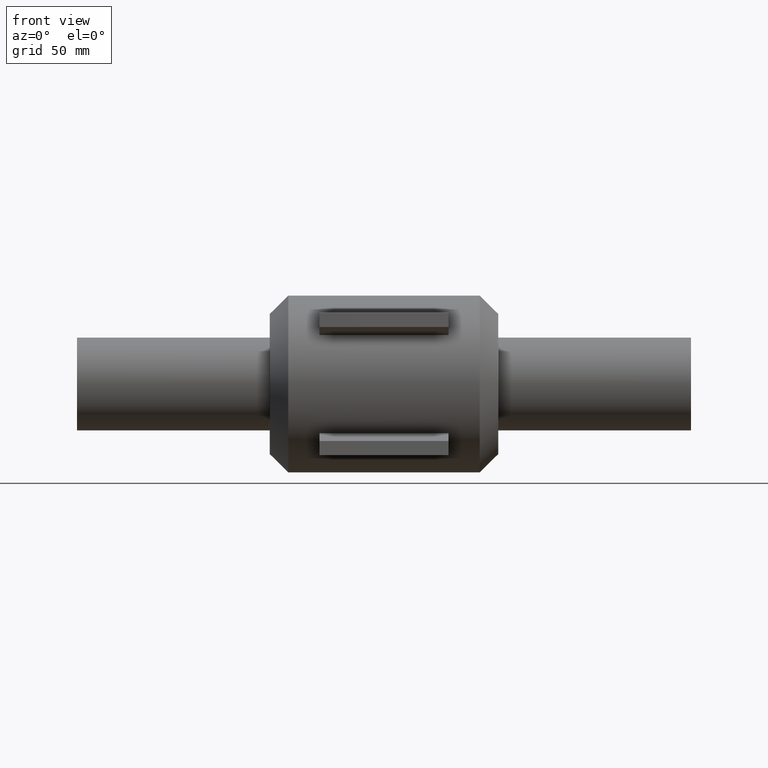
[diagram: clean part render]
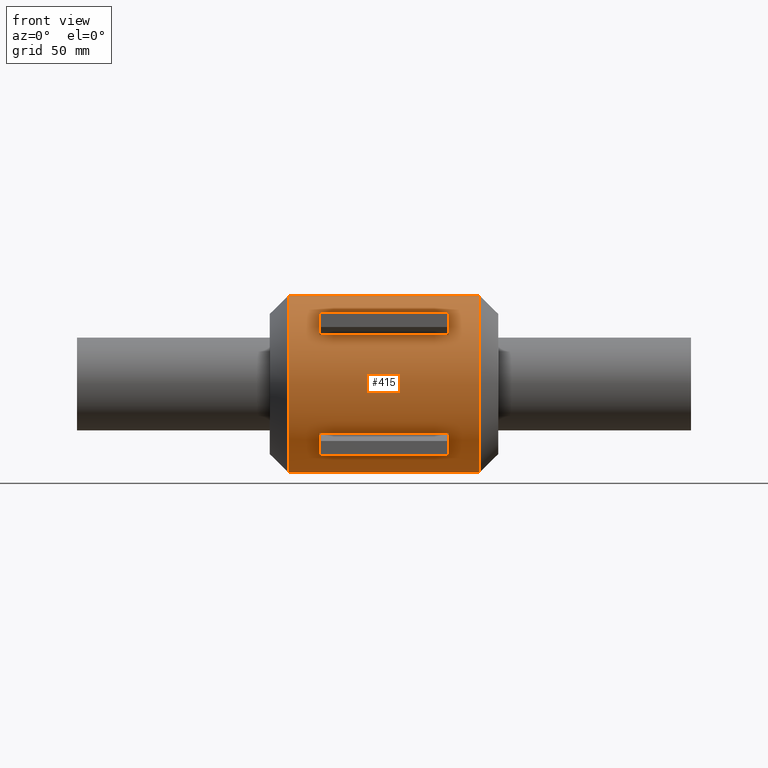
[diagram: same view with one face highlighted and labeled with its STEP entity id]
A machine part, front view. The second image highlights one B-rep face of the part: STEP entity #415.
In plain terms, the highlighted cylindrical surface (bore or boss wall) has radius 60 mm, axis along (1, 0, 0).
Its self-contained STEP definition (entity closure, byte-faithful):
#38=LINE('',#849,#58);
#39=LINE('',#852,#59);
#40=LINE('',#857,#60);
#41=LINE('',#860,#61);
#58=VECTOR('',#522,87.);
#59=VECTOR('',#525,87.);
#60=VECTOR('',#528,87.);
#61=VECTOR('',#531,87.);
#79=FACE_BOUND('',#148,.T.);
#80=FACE_BOUND('',#149,.T.);
#81=FACE_BOUND('',#150,.T.);
#82=FACE_BOUND('',#151,.T.);
#104=CYLINDRICAL_SURFACE('',#451,60.);
#114=FACE_OUTER_BOUND('',#147,.T.);
#147=EDGE_LOOP('',(#322));
#148=EDGE_LOOP('',(#323));
#149=EDGE_LOOP('',(#324,#325,#326,#327));
#150=EDGE_LOOP('',(#328,#329,#330,#331));
#151=EDGE_LOOP('',(#332));
#202=B_SPLINE_CURVE_WITH_KNOTS('',3,(#810,#811,#812,#813,#814,#815,#816,
#817,#818,#819,#820,#821,#822,#823,#824,#825,#826,#827,#828,#829,#830,#831,
#832,#833,#834,#835,#836),.UNSPECIFIED.,.T.,.F.,(4,1,1,1,1,1,1,1,1,1,1,
1,1,1,1,1,1,1,1,1,1,1,1,1,4),(-40.3136344930956,-39.3537860527838,-38.393937612472,
-36.4742407318484,-35.4077424648353,-35.1944428114327,-33.9146448910169,
-32.6348469706012,-31.3550490501855,-30.0752511297697,-28.795453209354,
-27.5156552889383,-26.8757563287304,-26.2358573685225,-24.9560594481068,
-23.6762615276911,-22.3964636072753,-21.1166656868596,-20.1568172465478,
-19.196968806236,-18.2371203659242,-17.2772719256124,-15.3575750449888,
-14.397726604677,-13.4378781643652),.UNSPECIFIED.);
#205=CIRCLE('',#452,60.);
#206=CIRCLE('',#453,60.);
#207=CIRCLE('',#454,60.);
#208=CIRCLE('',#455,60.);
#209=CIRCLE('',#456,60.);
#210=CIRCLE('',#457,60.);
#229=VERTEX_POINT('',#780);
#232=VERTEX_POINT('',#841);
#233=VERTEX_POINT('',#843);
#234=VERTEX_POINT('',#845);
#235=VERTEX_POINT('',#846);
#236=VERTEX_POINT('',#848);
#237=VERTEX_POINT('',#850);
#238=VERTEX_POINT('',#853);
#239=VERTEX_POINT('',#854);
#240=VERTEX_POINT('',#856);
#241=VERTEX_POINT('',#858);
#270=EDGE_CURVE('',#229,#229,#202,.T.);
#272=EDGE_CURVE('',#232,#232,#205,.T.);
#273=EDGE_CURVE('',#233,#233,#206,.T.);
#274=EDGE_CURVE('',#234,#235,#207,.T.);
#275=EDGE_CURVE('',#235,#236,#38,.T.);
#276=EDGE_CURVE('',#236,#237,#208,.T.);
#277=EDGE_CURVE('',#237,#234,#39,.T.);
#278=EDGE_CURVE('',#238,#239,#209,.T.);
#279=EDGE_CURVE('',#239,#240,#40,.T.);
#280=EDGE_CURVE('',#240,#241,#210,.T.);
#281=EDGE_CURVE('',#241,#238,#41,.T.);
#322=ORIENTED_EDGE('',*,*,#272,.T.);
#323=ORIENTED_EDGE('',*,*,#273,.F.);
#324=ORIENTED_EDGE('',*,*,#274,.T.);
#325=ORIENTED_EDGE('',*,*,#275,.T.);
#326=ORIENTED_EDGE('',*,*,#276,.T.);
#327=ORIENTED_EDGE('',*,*,#277,.T.);
#328=ORIENTED_EDGE('',*,*,#278,.T.);
#329=ORIENTED_EDGE('',*,*,#279,.T.);
#330=ORIENTED_EDGE('',*,*,#280,.T.);
#331=ORIENTED_EDGE('',*,*,#281,.T.);
#332=ORIENTED_EDGE('',*,*,#270,.F.);
#415=ADVANCED_FACE('',(#114,#79,#80,#81,#82),#104,.T.);
#451=AXIS2_PLACEMENT_3D('',#840,#514,#515);
#452=AXIS2_PLACEMENT_3D('',#842,#516,#517);
#453=AXIS2_PLACEMENT_3D('',#844,#518,#519);
#454=AXIS2_PLACEMENT_3D('',#847,#520,#521);
#455=AXIS2_PLACEMENT_3D('',#851,#523,#524);
#456=AXIS2_PLACEMENT_3D('',#855,#526,#527);
#457=AXIS2_PLACEMENT_3D('',#859,#529,#530);
#514=DIRECTION('center_axis',(1.,0.,0.));
#515=DIRECTION('ref_axis',(0.,1.,0.));
#516=DIRECTION('center_axis',(1.,0.,0.));
#517=DIRECTION('ref_axis',(0.,0.,-1.));
#518=DIRECTION('center_axis',(1.,0.,0.));
#519=DIRECTION('ref_axis',(0.,0.,-1.));
#520=DIRECTION('center_axis',(-1.,0.,0.));
#521=DIRECTION('ref_axis',(0.,1.,0.));
#522=DIRECTION('',(1.,0.,0.));
#523=DIRECTION('center_axis',(1.,0.,0.));
#524=DIRECTION('ref_axis',(0.,1.,0.));
#525=DIRECTION('',(-1.,0.,0.));
#526=DIRECTION('center_axis',(-1.,0.,0.));
#527=DIRECTION('ref_axis',(0.,1.,0.));
#528=DIRECTION('',(1.,0.,0.));
#529=DIRECTION('center_axis',(1.,0.,0.));
#530=DIRECTION('ref_axis',(0.,1.,0.));
#531=DIRECTION('',(-1.,0.,0.));
#780=CARTESIAN_POINT('',(7.10790212317508E-15,41.8632644145064,-42.9821717990276));
#810=CARTESIAN_POINT('Ctrl Pts',(1.30726340485943E-5,41.8619343643239,-42.9827203600739));
#811=CARTESIAN_POINT('Ctrl Pts',(-3.44624976299369,41.8619472724785,-42.9827912331865));
#812=CARTESIAN_POINT('Ctrl Pts',(-10.3388563718889,42.7040140663851,-42.1825551043804));
#813=CARTESIAN_POINT('Ctrl Pts',(-22.7595682983311,46.8595328535424,-37.7683540006525));
#814=CARTESIAN_POINT('Ctrl Pts',(-33.0667059367313,52.6562168536819,-29.7678476314516));
#815=CARTESIAN_POINT('Ctrl Pts',(-38.903942139089,56.4096990340295,-20.7922445860544));
#816=CARTESIAN_POINT('Ctrl Pts',(-42.446356099597,58.7776569367819,-12.8831228382235));
#817=CARTESIAN_POINT('Ctrl Pts',(-44.7955477940022,60.4172896385186,-3.43898308027606));
#818=CARTESIAN_POINT('Ctrl Pts',(-43.6790800458981,59.630941010684,10.1710923024498));
#819=CARTESIAN_POINT('Ctrl Pts',(-38.5258742699626,56.1088455984774,22.3225373809327));
#820=CARTESIAN_POINT('Ctrl Pts',(-30.3488158377602,51.0511860946112,32.0466470499162));
#821=CARTESIAN_POINT('Ctrl Pts',(-19.8311637697037,45.7121867208487,39.0961972927906));
#822=CARTESIAN_POINT('Ctrl Pts',(-9.2052202763376,42.4123326520078,42.4518714702905));
#823=CARTESIAN_POINT('Ctrl Pts',(0.00126723881671252,41.6799426826442,43.1593477275519));
#824=CARTESIAN_POINT('Ctrl Pts',(9.20306959360289,42.4117512583916,42.4520272199412));
#825=CARTESIAN_POINT('Ctrl Pts',(19.8337195842178,45.7134191364853,39.095923618414));
#826=CARTESIAN_POINT('Ctrl Pts',(30.3469440605788,51.0493249331023,32.0464942816199));
#827=CARTESIAN_POINT('Ctrl Pts',(38.5285827979598,56.1117635161992,22.3235997106214));
#828=CARTESIAN_POINT('Ctrl Pts',(43.2440813262744,59.3329682849007,11.1821480554777));
#829=CARTESIAN_POINT('Ctrl Pts',(44.6108794121551,60.2860000880844,-0.00206115194141561));
#830=CARTESIAN_POINT('Ctrl Pts',(43.3803933054945,59.4290117515072,-10.0570186221333));
#831=CARTESIAN_POINT('Ctrl Pts',(39.9006440021849,57.0446183216193,-19.3242555684438));
#832=CARTESIAN_POINT('Ctrl Pts',(32.7886078867227,52.4995667160428,-29.9801931316612));
#833=CARTESIAN_POINT('Ctrl Pts',(22.7596918457645,46.8597143785439,-37.7698269350949));
#834=CARTESIAN_POINT('Ctrl Pts',(10.3387206418775,42.703936617458,-42.1821298657049));
#835=CARTESIAN_POINT('Ctrl Pts',(3.44627590826178,41.8619214561694,-42.9826494869613));
#836=CARTESIAN_POINT('Ctrl Pts',(1.30726340486407E-5,41.8619343643239,-42.9827203600739));
#840=CARTESIAN_POINT('Origin',(0.,0.,0.));
#841=CARTESIAN_POINT('',(-64.58,60.,0.));
#842=CARTESIAN_POINT('Origin',(-64.58,0.,0.));
#843=CARTESIAN_POINT('',(64.58,60.,0.));
#844=CARTESIAN_POINT('Origin',(64.5800000000001,0.,0.));
#845=CARTESIAN_POINT('',(-43.5,-50.0332580386372,33.1160548682833));
#846=CARTESIAN_POINT('',(-43.5,-36.,48.));
#847=CARTESIAN_POINT('Origin',(-43.5,0.,0.));
#848=CARTESIAN_POINT('',(43.5,-36.,48.));
#849=CARTESIAN_POINT('',(0.,-36.,48.));
#850=CARTESIAN_POINT('',(43.5,-50.0332580386372,33.1160548682833));
#851=CARTESIAN_POINT('Origin',(43.5,0.,0.));
#852=CARTESIAN_POINT('',(0.,-50.0332580386372,33.1160548682833));
#853=CARTESIAN_POINT('',(-43.5,-36.,-48.));
#854=CARTESIAN_POINT('',(-43.5,-50.0332580386372,-33.1160548682833));
#855=CARTESIAN_POINT('Origin',(-43.5,0.,0.));
#856=CARTESIAN_POINT('',(43.5,-50.0332580386372,-33.1160548682833));
#857=CARTESIAN_POINT('',(0.,-50.0332580386372,-33.1160548682833));
#858=CARTESIAN_POINT('',(43.5,-36.,-48.));
#859=CARTESIAN_POINT('Origin',(43.5,0.,0.));
#860=CARTESIAN_POINT('',(0.,-36.,-48.));